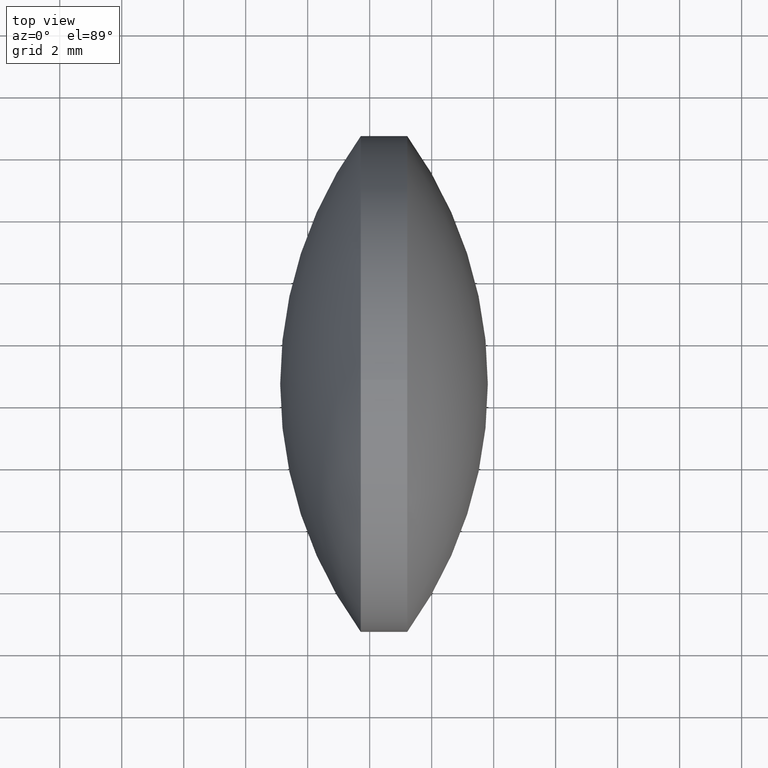
[diagram: clean part render]
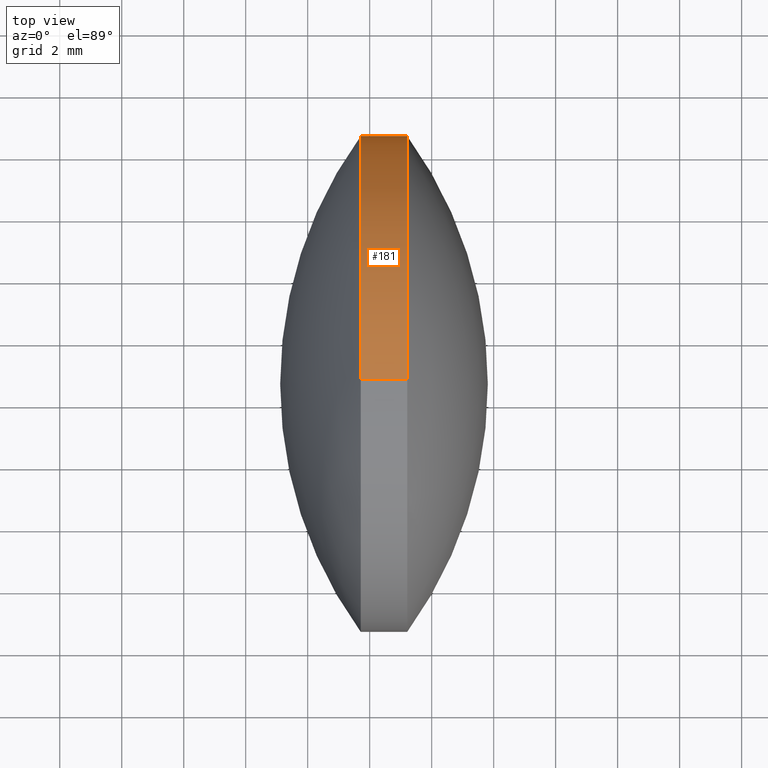
[diagram: same view with one face highlighted and labeled with its STEP entity id]
A machine part, top view. The second image highlights one B-rep face of the part: STEP entity #181.
In plain terms, the highlighted cylindrical surface (partial cylindrical patch) has radius 8 mm, axis along (-1, -0, -0).
Its self-contained STEP definition (entity closure, byte-faithful):
#1 = DIRECTION ( 'NONE',  ( 0.0000000000000000000, 0.0000000000000000000, 1.000000000000000000 ) ) ;
#2 = VERTEX_POINT ( 'NONE', #249 ) ;
#7 = DIRECTION ( 'NONE',  ( 0.0000000000000000000, 0.0000000000000000000, 1.000000000000000000 ) ) ;
#9 = CARTESIAN_POINT ( 'NONE',  ( 55.21179720338697900, 30.62432316421088900, 0.0000000000000000000 ) ) ;
#19 = CIRCLE ( 'NONE', #169, 7.999999999999992900 ) ;
#27 = DIRECTION ( 'NONE',  ( -1.000000000000000000, -0.0000000000000000000, -0.0000000000000000000 ) ) ;
#37 = EDGE_CURVE ( 'NONE', #2, #184, #187, .T. ) ;
#40 = ORIENTED_EDGE ( 'NONE', *, *, #231, .T. ) ;
#41 = VERTEX_POINT ( 'NONE', #222 ) ;
#44 = LINE ( 'NONE', #238, #138 ) ;
#55 = AXIS2_PLACEMENT_3D ( 'NONE', #114, #27, #226 ) ;
#58 = CARTESIAN_POINT ( 'NONE',  ( 53.71191148910125400, 30.62432316421088900, 7.999999999999992900 ) ) ;
#69 = AXIS2_PLACEMENT_3D ( 'NONE', #9, #292, #261 ) ;
#105 = ORIENTED_EDGE ( 'NONE', *, *, #321, .T. ) ;
#107 = AXIS2_PLACEMENT_3D ( 'NONE', #165, #284, #1 ) ;
#110 = CARTESIAN_POINT ( 'NONE',  ( 55.21179720338697900, 30.62432316421088900, -7.999999999999992900 ) ) ;
#114 = CARTESIAN_POINT ( 'NONE',  ( 49.95615833123601100, 30.62432316421088900, 0.0000000000000000000 ) ) ;
#115 = ORIENTED_EDGE ( 'NONE', *, *, #247, .F. ) ;
#119 = DIRECTION ( 'NONE',  ( -1.000000000000000000, -0.0000000000000000000, -0.0000000000000000000 ) ) ;
#123 = CARTESIAN_POINT ( 'NONE',  ( 53.71191148910125400, 30.62432316421088900, 0.0000000000000000000 ) ) ;
#130 = ORIENTED_EDGE ( 'NONE', *, *, #37, .T. ) ;
#138 = VECTOR ( 'NONE', #119, 1000.000000000000000 ) ;
#145 = CARTESIAN_POINT ( 'NONE',  ( 53.71191148910125400, 30.62432316421088900, -7.999999999999992900 ) ) ;
#153 = CIRCLE ( 'NONE', #250, 7.999999999999992900 ) ;
#155 = VERTEX_POINT ( 'NONE', #332 ) ;
#161 = LINE ( 'NONE', #200, #304 ) ;
#165 = CARTESIAN_POINT ( 'NONE',  ( 55.21179720338697900, 30.62432316421088900, 0.0000000000000000000 ) ) ;
#169 = AXIS2_PLACEMENT_3D ( 'NONE', #123, #314, #7 ) ;
#172 = DIRECTION ( 'NONE',  ( 0.0000000000000000000, 0.0000000000000000000, 1.000000000000000000 ) ) ;
#181 = ADVANCED_FACE ( 'NONE', ( #302 ), #206, .T. ) ;
#184 = VERTEX_POINT ( 'NONE', #110 ) ;
#187 = CIRCLE ( 'NONE', #107, 7.999999999999992900 ) ;
#200 = CARTESIAN_POINT ( 'NONE',  ( 49.95615833123601100, 30.62432316421088900, -7.999999999999992900 ) ) ;
#206 = CYLINDRICAL_SURFACE ( 'NONE', #55, 7.999999999999992900 ) ;
#207 = ORIENTED_EDGE ( 'NONE', *, *, #229, .F. ) ;
#222 = CARTESIAN_POINT ( 'NONE',  ( 53.71191148910125400, 38.62432316421088500, 0.0000000000000000000 ) ) ;
#226 = DIRECTION ( 'NONE',  ( 0.0000000000000000000, 0.0000000000000000000, 1.000000000000000000 ) ) ;
#229 = EDGE_CURVE ( 'NONE', #320, #41, #19, .T. ) ;
#231 = EDGE_CURVE ( 'NONE', #184, #252, #161, .T. ) ;
#233 = CIRCLE ( 'NONE', #69, 7.999999999999992900 ) ;
#238 = CARTESIAN_POINT ( 'NONE',  ( 49.95615833123601100, 30.62432316421088900, 7.999999999999992900 ) ) ;
#247 = EDGE_CURVE ( 'NONE', #41, #252, #153, .T. ) ;
#249 = CARTESIAN_POINT ( 'NONE',  ( 55.21179720338697900, 38.62432316421088500, 0.0000000000000000000 ) ) ;
#250 = AXIS2_PLACEMENT_3D ( 'NONE', #333, #293, #172 ) ;
#252 = VERTEX_POINT ( 'NONE', #145 ) ;
#261 = DIRECTION ( 'NONE',  ( 0.0000000000000000000, 0.0000000000000000000, 1.000000000000000000 ) ) ;
#269 = EDGE_CURVE ( 'NONE', #155, #320, #44, .T. ) ;
#284 = DIRECTION ( 'NONE',  ( -1.000000000000000000, -0.0000000000000000000, -0.0000000000000000000 ) ) ;
#287 = DIRECTION ( 'NONE',  ( -1.000000000000000000, -0.0000000000000000000, -0.0000000000000000000 ) ) ;
#292 = DIRECTION ( 'NONE',  ( -1.000000000000000000, -0.0000000000000000000, -0.0000000000000000000 ) ) ;
#293 = DIRECTION ( 'NONE',  ( -1.000000000000000000, -0.0000000000000000000, -0.0000000000000000000 ) ) ;
#302 = FACE_OUTER_BOUND ( 'NONE', #308, .T. ) ;
#304 = VECTOR ( 'NONE', #287, 1000.000000000000000 ) ;
#305 = ORIENTED_EDGE ( 'NONE', *, *, #269, .F. ) ;
#308 = EDGE_LOOP ( 'NONE', ( #130, #40, #115, #207, #305, #105 ) ) ;
#314 = DIRECTION ( 'NONE',  ( -1.000000000000000000, -0.0000000000000000000, -0.0000000000000000000 ) ) ;
#320 = VERTEX_POINT ( 'NONE', #58 ) ;
#321 = EDGE_CURVE ( 'NONE', #155, #2, #233, .T. ) ;
#332 = CARTESIAN_POINT ( 'NONE',  ( 55.21179720338697900, 30.62432316421088900, 7.999999999999992900 ) ) ;
#333 = CARTESIAN_POINT ( 'NONE',  ( 53.71191148910125400, 30.62432316421088900, 0.0000000000000000000 ) ) ;